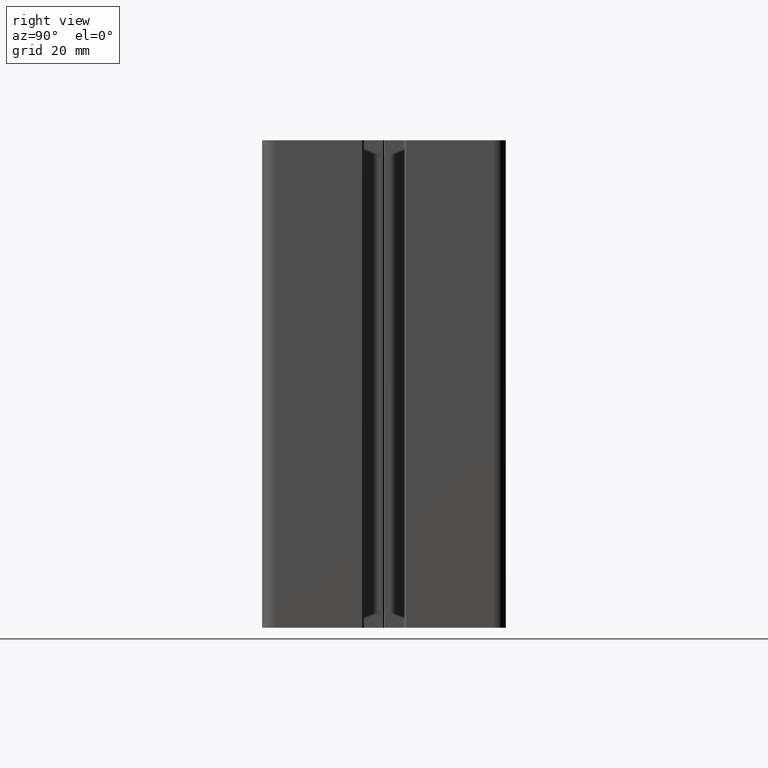
[diagram: clean part render]
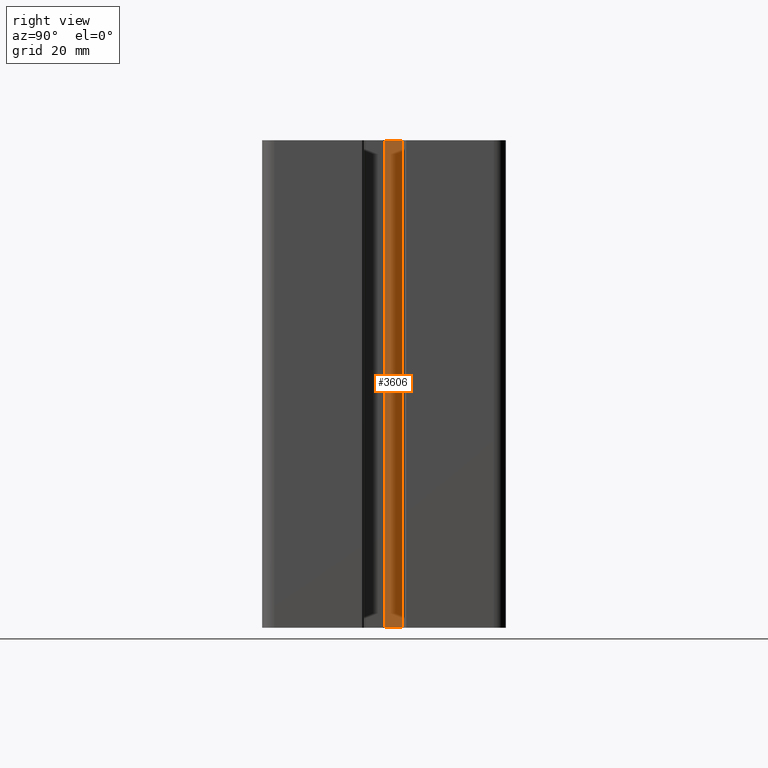
[diagram: same view with one face highlighted and labeled with its STEP entity id]
A machine part, right view. The second image highlights one B-rep face of the part: STEP entity #3606.
In plain terms, the highlighted planar face has unit normal (1, -0, 0).
Its self-contained STEP definition (entity closure, byte-faithful):
#464=FACE_OUTER_BOUND('',#646,.T.);
#646=EDGE_LOOP('',(#2969,#2970,#2971,#2972));
#1016=LINE('',#6082,#1376);
#1017=LINE('',#6085,#1377);
#1018=LINE('',#6087,#1378);
#1019=LINE('',#6088,#1379);
#1376=VECTOR('',#5012,100.);
#1377=VECTOR('',#5015,3.60000000000593);
#1378=VECTOR('',#5016,3.60000000000593);
#1379=VECTOR('',#5017,100.);
#1735=VERTEX_POINT('',#6078);
#1736=VERTEX_POINT('',#6080);
#1737=VERTEX_POINT('',#6084);
#1738=VERTEX_POINT('',#6086);
#2264=EDGE_CURVE('',#1735,#1736,#1016,.T.);
#2265=EDGE_CURVE('',#1737,#1735,#1017,.T.);
#2266=EDGE_CURVE('',#1738,#1736,#1018,.T.);
#2267=EDGE_CURVE('',#1737,#1738,#1019,.T.);
#2969=ORIENTED_EDGE('',*,*,#2265,.T.);
#2970=ORIENTED_EDGE('',*,*,#2264,.T.);
#2971=ORIENTED_EDGE('',*,*,#2266,.F.);
#2972=ORIENTED_EDGE('',*,*,#2267,.F.);
#3426=PLANE('',#3960);
#3606=ADVANCED_FACE('',(#464),#3426,.T.);
#3960=AXIS2_PLACEMENT_3D('',#6083,#5013,#5014);
#5012=DIRECTION('',(0.,0.,1.));
#5013=DIRECTION('center_axis',(1.,-2.289526593001E-12,0.));
#5014=DIRECTION('ref_axis',(2.28936869461904E-12,1.,0.));
#5015=DIRECTION('',(2.289526593001E-12,1.,0.));
#5016=DIRECTION('',(2.289526593001E-12,1.,0.));
#5017=DIRECTION('',(0.,0.,1.));
#6078=CARTESIAN_POINT('',(34.7000000000057,3.80000000000223,0.));
#6080=CARTESIAN_POINT('',(34.7000000000057,3.80000000000223,100.));
#6082=CARTESIAN_POINT('',(34.7000000000057,3.80000000000223,0.));
#6083=CARTESIAN_POINT('Origin',(34.6999999999975,0.199999999996301,0.));
#6084=CARTESIAN_POINT('',(34.6999999999975,0.199999999996301,0.));
#6085=CARTESIAN_POINT('',(34.6999999999975,0.199999999996301,0.));
#6086=CARTESIAN_POINT('',(34.6999999999975,0.199999999996301,100.));
#6087=CARTESIAN_POINT('',(34.6999999999975,0.199999999996301,100.));
#6088=CARTESIAN_POINT('',(34.6999999999975,0.199999999996301,0.));